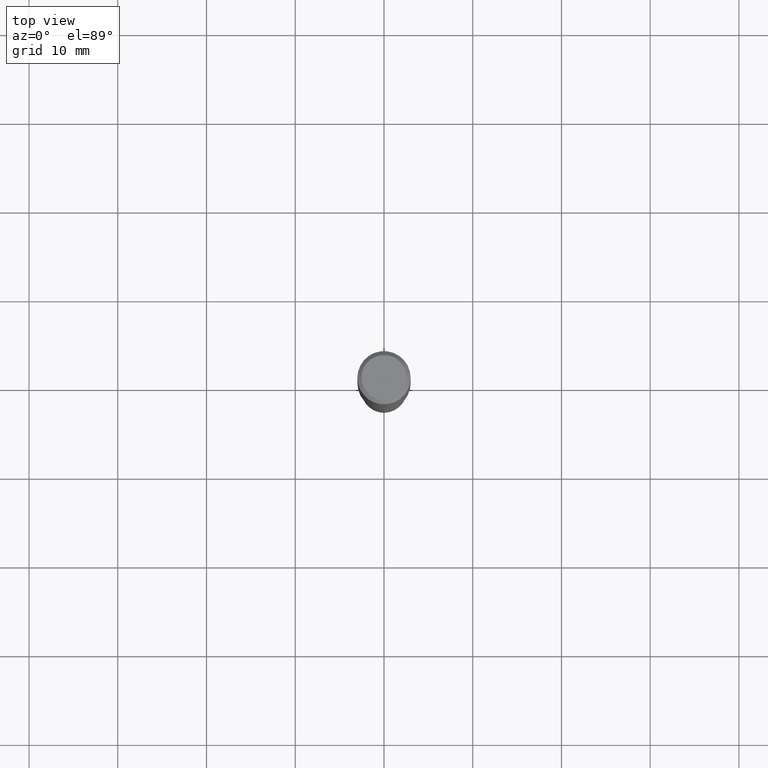
[diagram: clean part render]
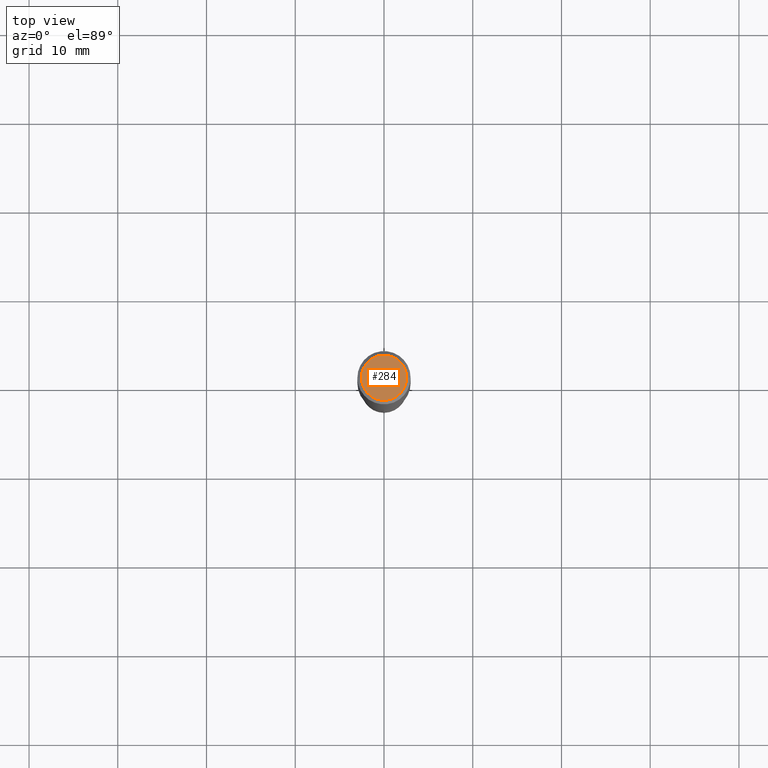
[diagram: same view with one face highlighted and labeled with its STEP entity id]
A machine part, top view. The second image highlights one B-rep face of the part: STEP entity #284.
In plain terms, the highlighted planar face has unit normal (0, -0, -1).
Its self-contained STEP definition (entity closure, byte-faithful):
#11 = CARTESIAN_POINT ( 'NONE',  ( 5.011033706304132718E-46, -7.154428071060963220E-32, -2.049109640503330010E-17 ) ) ;
#44 = DIRECTION ( 'NONE',  ( 1.000000000000000000, -6.982962677686266711E-15, 4.875668750515085695E-29 ) ) ;
#99 = DIRECTION ( 'NONE',  ( -2.445468806185136597E-29, 3.491481338843145583E-15, 1.000000000000000000 ) ) ;
#113 = DIRECTION ( 'NONE',  ( 2.438088387897960049E-29, -3.491481338843145188E-15, -1.000000000000000000 ) ) ;
#121 = AXIS2_PLACEMENT_3D ( 'NONE', #425, #113, #383 ) ;
#130 = EDGE_LOOP ( 'NONE', ( #319, #313 ) ) ;
#142 = CARTESIAN_POINT ( 'NONE',  ( 0.1003850000000000159, -7.803837484803599345E-16, -2.049109640502812012E-17 ) ) ;
#151 = AXIS2_PLACEMENT_3D ( 'NONE', #11, #380, #44 ) ;
#242 = VERTEX_POINT ( 'NONE', #142 ) ;
#256 = DIRECTION ( 'NONE',  ( 1.000000000000000000, -6.982962677686266711E-15, 4.875668750515085695E-29 ) ) ;
#266 = CIRCLE ( 'NONE', #151, 0.1003850000000000159 ) ;
#284 = ADVANCED_FACE ( 'NONE', ( #301 ), #423, .F. ) ;
#297 = EDGE_CURVE ( 'NONE', #242, #476, #266, .T. ) ;
#301 = FACE_OUTER_BOUND ( 'NONE', #130, .T. ) ;
#310 = AXIS2_PLACEMENT_3D ( 'NONE', #449, #99, #256 ) ;
#313 = ORIENTED_EDGE ( 'NONE', *, *, #297, .T. ) ;
#319 = ORIENTED_EDGE ( 'NONE', *, *, #467, .T. ) ;
#350 = CIRCLE ( 'NONE', #310, 0.1003850000000000159 ) ;
#380 = DIRECTION ( 'NONE',  ( -2.445468806185136597E-29, 3.491481338843145583E-15, 1.000000000000000000 ) ) ;
#383 = DIRECTION ( 'NONE',  ( -1.000000000000000000, 6.982962677686265922E-15, -4.876176775795935793E-29 ) ) ;
#423 = PLANE ( 'NONE',  #121 ) ;
#425 = CARTESIAN_POINT ( 'NONE',  ( 2.505516853152066359E-46, -3.577214035530481610E-32, -1.024554820251665005E-17 ) ) ;
#442 = CARTESIAN_POINT ( 'NONE',  ( -0.1003850000000000159, 7.319105043583384717E-16, -2.049109640503831060E-17 ) ) ;
#449 = CARTESIAN_POINT ( 'NONE',  ( 5.011033706304132718E-46, -7.154428071060963220E-32, -2.049109640503330010E-17 ) ) ;
#467 = EDGE_CURVE ( 'NONE', #476, #242, #350, .T. ) ;
#476 = VERTEX_POINT ( 'NONE', #442 ) ;